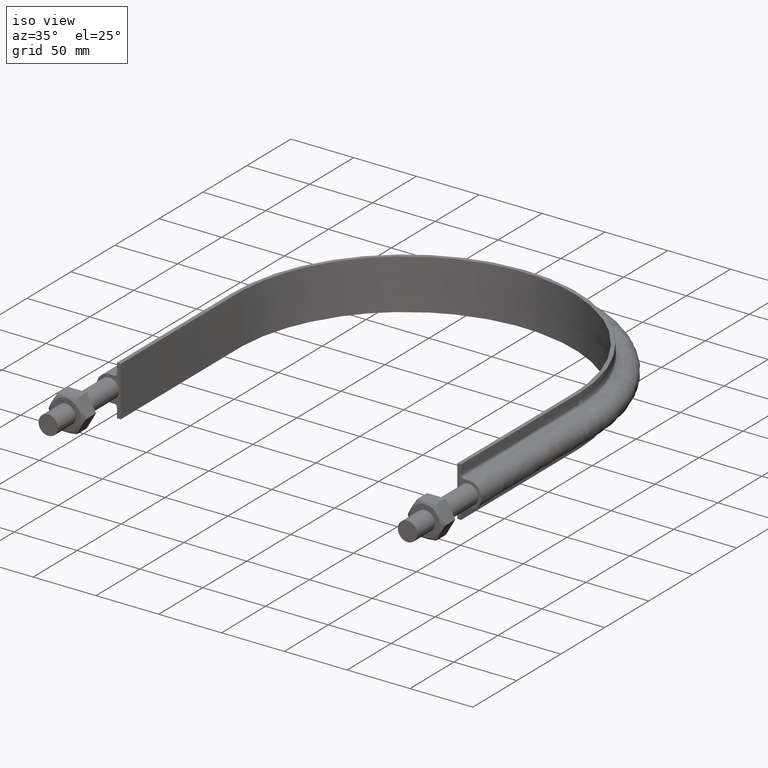
[diagram: clean part render]
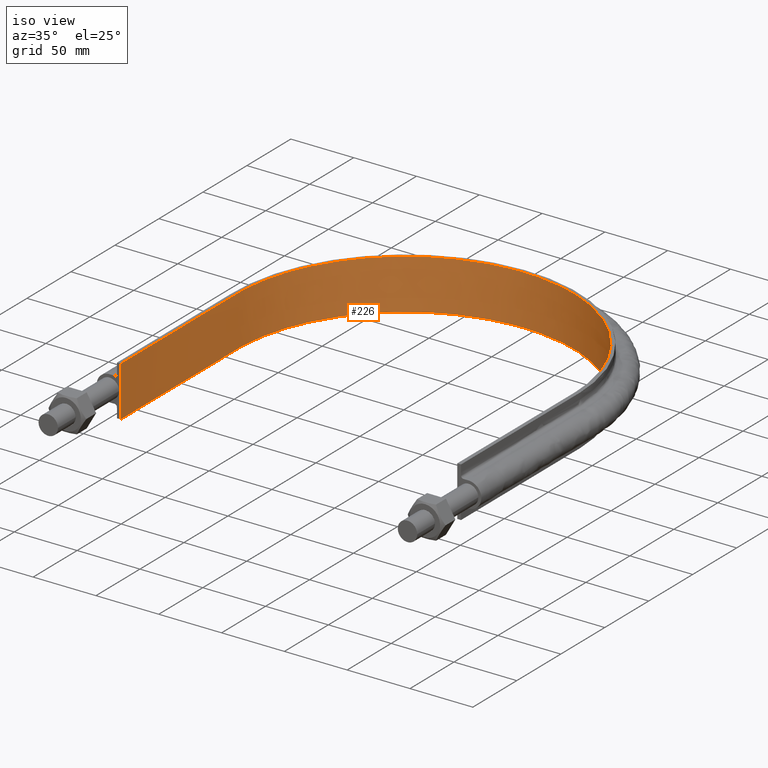
[diagram: same view with one face highlighted and labeled with its STEP entity id]
A machine part, iso view. The second image highlights one B-rep face of the part: STEP entity #226.
In plain terms, the highlighted face is a SurfaceOfExtrusion surface.
Its self-contained STEP definition (entity closure, byte-faithful):
#226 = ADVANCED_FACE( '', ( #277 ), #278, .T. );
#277 = FACE_OUTER_BOUND( '', #565, .T. );
#278 = SURFACE_OF_LINEAR_EXTRUSION( '', #566, #567 );
#565 = EDGE_LOOP( '', ( #1610, #1611, #1612, #1613 ) );
#566 = B_SPLINE_CURVE_WITH_KNOTS( '', 3, ( #1614, #1615, #1616, #1617, #1618, #1619, #1620, #1621, #1622, #1623, #1624, #1625, #1626, #1627, #1628, #1629, #1630 ), .UNSPECIFIED., .F., .F., ( 4, 3, 1, 1, 1, 1, 1, 1, 1, 3, 4 ), ( -10.0000000000000, -9.00000000000000, -8.00000000000000, -7.00000000000000, -6.00000000000000, -5.00000000000000, -4.00000000000000, -3.00000000000000, -2.00000000000000, -1.00000000000000, 0.000000000000000 ), .UNSPECIFIED. );
#567 = VECTOR( '', #1631, 1000.00000000000 );
#1610 = ORIENTED_EDGE( '', *, *, #1841, .T. );
#1611 = ORIENTED_EDGE( '', *, *, #1835, .F. );
#1612 = ORIENTED_EDGE( '', *, *, #1848, .F. );
#1613 = ORIENTED_EDGE( '', *, *, #1845, .T. );
#1614 = CARTESIAN_POINT( '', ( -133.950000000000, 69.5000000000001, -440.423363781454 ) );
#1615 = CARTESIAN_POINT( '', ( -133.950000000000, 113.683333333333, -440.423363781454 ) );
#1616 = CARTESIAN_POINT( '', ( -133.950000000000, 157.866666666667, -440.423363781454 ) );
#1617 = CARTESIAN_POINT( '', ( -133.950000000000, 202.050000000000, -440.423363781454 ) );
#1618 = CARTESIAN_POINT( '', ( -133.950000000000, 219.566032700257, -440.423363781454 ) );
#1619 = CARTESIAN_POINT( '', ( -126.975474198415, 254.652216480459, -440.423363781454 ) );
#1620 = CARTESIAN_POINT( '', ( -97.1828205848687, 299.230867859828, -440.423363781454 ) );
#1621 = CARTESIAN_POINT( '', ( -52.5949635017385, 329.026032119855, -440.423363781454 ) );
#1622 = CARTESIAN_POINT( '', ( 9.70849429885587E-014, 339.486983940073, -440.423363781454 ) );
#1623 = CARTESIAN_POINT( '', ( 52.5949635017385, 329.026032119855, -440.423363781454 ) );
#1624 = CARTESIAN_POINT( '', ( 97.1828205848688, 299.230867859828, -440.423363781454 ) );
#1625 = CARTESIAN_POINT( '', ( 126.975474198415, 254.652216480460, -440.423363781454 ) );
#1626 = CARTESIAN_POINT( '', ( 133.950000000000, 219.566032700257, -440.423363781454 ) );
#1627 = CARTESIAN_POINT( '', ( 133.950000000000, 202.050000000000, -440.423363781454 ) );
#1628 = CARTESIAN_POINT( '', ( 133.950000000000, 157.866666666667, -440.423363781454 ) );
#1629 = CARTESIAN_POINT( '', ( 133.950000000000, 113.683333333333, -440.423363781454 ) );
#1630 = CARTESIAN_POINT( '', ( 133.950000000000, 69.5000000000000, -440.423363781454 ) );
#1631 = DIRECTION( '', ( 0.000000000000000, 0.000000000000000, 1.00000000000000 ) );
#1835 = EDGE_CURVE( '', #1910, #1912, #1913, .T. );
#1841 = EDGE_CURVE( '', #1923, #1912, #1924, .T. );
#1845 = EDGE_CURVE( '', #1929, #1923, #1930, .T. );
#1848 = EDGE_CURVE( '', #1929, #1910, #1934, .T. );
#1910 = VERTEX_POINT( '', #2160 );
#1912 = VERTEX_POINT( '', #2163 );
#1913 = B_SPLINE_CURVE_WITH_KNOTS( '', 3, ( #2164, #2165, #2166, #2167, #2168, #2169, #2170, #2171, #2172, #2173, #2174, #2175, #2176, #2177, #2178, #2179, #2180 ), .UNSPECIFIED., .F., .F., ( 4, 3, 1, 1, 1, 1, 1, 1, 1, 3, 4 ), ( -10.0000000000000, -9.00000000000000, -8.00000000000000, -7.00000000000000, -6.00000000000000, -5.00000000000000, -4.00000000000000, -3.00000000000000, -2.00000000000000, -1.00000000000000, 0.000000000000000 ), .UNSPECIFIED. );
#1923 = VERTEX_POINT( '', #2391 );
#1924 = LINE( '', #2392, #2393 );
#1929 = VERTEX_POINT( '', #2440 );
#1930 = B_SPLINE_CURVE_WITH_KNOTS( '', 3, ( #2441, #2442, #2443, #2444, #2445, #2446, #2447, #2448, #2449, #2450, #2451, #2452, #2453, #2454, #2455, #2456, #2457 ), .UNSPECIFIED., .F., .F., ( 4, 3, 1, 1, 1, 1, 1, 1, 1, 3, 4 ), ( -10.0000000000000, -9.00000000000000, -8.00000000000000, -7.00000000000000, -6.00000000000000, -5.00000000000000, -4.00000000000000, -3.00000000000000, -2.00000000000000, -1.00000000000000, 0.000000000000000 ), .UNSPECIFIED. );
#1934 = LINE( '', #2472, #2473 );
#2160 = CARTESIAN_POINT( '', ( -133.950000000000, 69.5000000000001, 20.0000000000000 ) );
#2163 = CARTESIAN_POINT( '', ( 133.950000000000, 69.5000000000000, 20.0000000000000 ) );
#2164 = CARTESIAN_POINT( '', ( -133.950000000000, 69.5000000000001, 20.0000000000000 ) );
#2165 = CARTESIAN_POINT( '', ( -133.950000000000, 113.683333333333, 20.0000000000000 ) );
#2166 = CARTESIAN_POINT( '', ( -133.950000000000, 157.866666666667, 20.0000000000000 ) );
#2167 = CARTESIAN_POINT( '', ( -133.950000000000, 202.050000000000, 20.0000000000000 ) );
#2168 = CARTESIAN_POINT( '', ( -133.950000000000, 219.566032700257, 20.0000000000000 ) );
#2169 = CARTESIAN_POINT( '', ( -126.975474198415, 254.652216480459, 20.0000000000000 ) );
#2170 = CARTESIAN_POINT( '', ( -97.1828205848687, 299.230867859828, 20.0000000000000 ) );
#2171 = CARTESIAN_POINT( '', ( -52.5949635017385, 329.026032119855, 20.0000000000000 ) );
#2172 = CARTESIAN_POINT( '', ( 9.70849429885587E-014, 339.486983940073, 20.0000000000000 ) );
#2173 = CARTESIAN_POINT( '', ( 52.5949635017385, 329.026032119855, 20.0000000000000 ) );
#2174 = CARTESIAN_POINT( '', ( 97.1828205848688, 299.230867859828, 20.0000000000000 ) );
#2175 = CARTESIAN_POINT( '', ( 126.975474198415, 254.652216480460, 20.0000000000000 ) );
#2176 = CARTESIAN_POINT( '', ( 133.950000000000, 219.566032700257, 20.0000000000000 ) );
#2177 = CARTESIAN_POINT( '', ( 133.950000000000, 202.050000000000, 20.0000000000000 ) );
#2178 = CARTESIAN_POINT( '', ( 133.950000000000, 157.866666666667, 20.0000000000000 ) );
#2179 = CARTESIAN_POINT( '', ( 133.950000000000, 113.683333333333, 20.0000000000000 ) );
#2180 = CARTESIAN_POINT( '', ( 133.950000000000, 69.5000000000000, 20.0000000000000 ) );
#2391 = CARTESIAN_POINT( '', ( 133.950000000000, 69.5000000000000, -20.0000000000000 ) );
#2392 = CARTESIAN_POINT( '', ( 133.950000000000, 69.5000000000000, -440.423363781454 ) );
#2393 = VECTOR( '', #2780, 1000.00000000000 );
#2440 = CARTESIAN_POINT( '', ( -133.950000000000, 69.5000000000001, -20.0000000000000 ) );
#2441 = CARTESIAN_POINT( '', ( -133.950000000000, 69.5000000000001, -20.0000000000000 ) );
#2442 = CARTESIAN_POINT( '', ( -133.950000000000, 113.683333333333, -20.0000000000000 ) );
#2443 = CARTESIAN_POINT( '', ( -133.950000000000, 157.866666666667, -20.0000000000000 ) );
#2444 = CARTESIAN_POINT( '', ( -133.950000000000, 202.050000000000, -20.0000000000000 ) );
#2445 = CARTESIAN_POINT( '', ( -133.950000000000, 219.566032700257, -20.0000000000000 ) );
#2446 = CARTESIAN_POINT( '', ( -126.975474198415, 254.652216480459, -20.0000000000000 ) );
#2447 = CARTESIAN_POINT( '', ( -97.1828205848687, 299.230867859828, -20.0000000000000 ) );
#2448 = CARTESIAN_POINT( '', ( -52.5949635017385, 329.026032119855, -20.0000000000000 ) );
#2449 = CARTESIAN_POINT( '', ( 9.70849429885587E-014, 339.486983940073, -20.0000000000000 ) );
#2450 = CARTESIAN_POINT( '', ( 52.5949635017385, 329.026032119855, -20.0000000000000 ) );
#2451 = CARTESIAN_POINT( '', ( 97.1828205848688, 299.230867859828, -20.0000000000000 ) );
#2452 = CARTESIAN_POINT( '', ( 126.975474198415, 254.652216480460, -20.0000000000000 ) );
#2453 = CARTESIAN_POINT( '', ( 133.950000000000, 219.566032700257, -20.0000000000000 ) );
#2454 = CARTESIAN_POINT( '', ( 133.950000000000, 202.050000000000, -20.0000000000000 ) );
#2455 = CARTESIAN_POINT( '', ( 133.950000000000, 157.866666666667, -20.0000000000000 ) );
#2456 = CARTESIAN_POINT( '', ( 133.950000000000, 113.683333333333, -20.0000000000000 ) );
#2457 = CARTESIAN_POINT( '', ( 133.950000000000, 69.5000000000000, -20.0000000000000 ) );
#2472 = CARTESIAN_POINT( '', ( -133.950000000000, 69.5000000000001, -440.423363781454 ) );
#2473 = VECTOR( '', #2783, 1000.00000000000 );
#2780 = DIRECTION( '', ( 0.000000000000000, 0.000000000000000, 1.00000000000000 ) );
#2783 = DIRECTION( '', ( 0.000000000000000, 0.000000000000000, 1.00000000000000 ) );